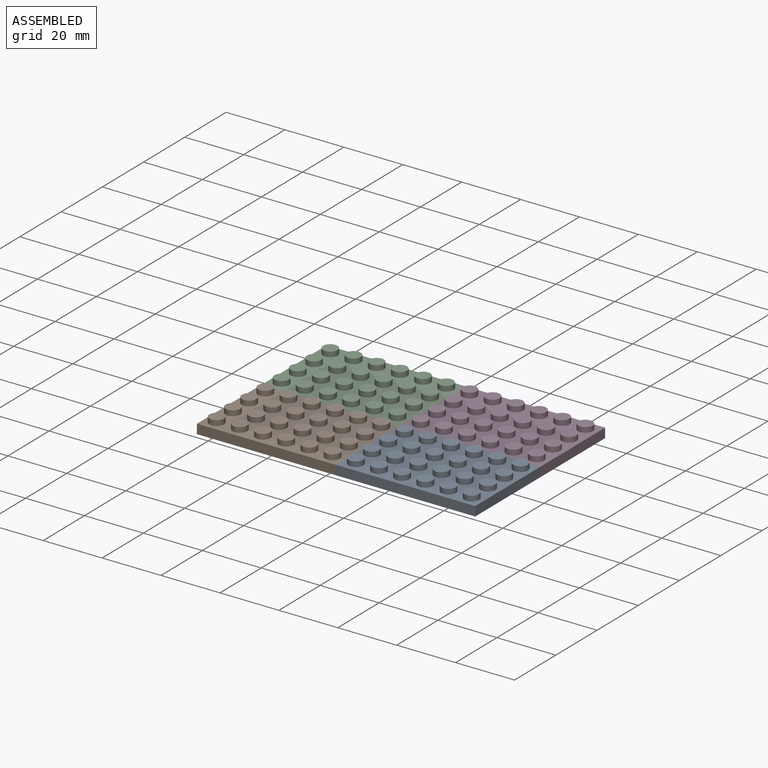
[diagram: assembled view]
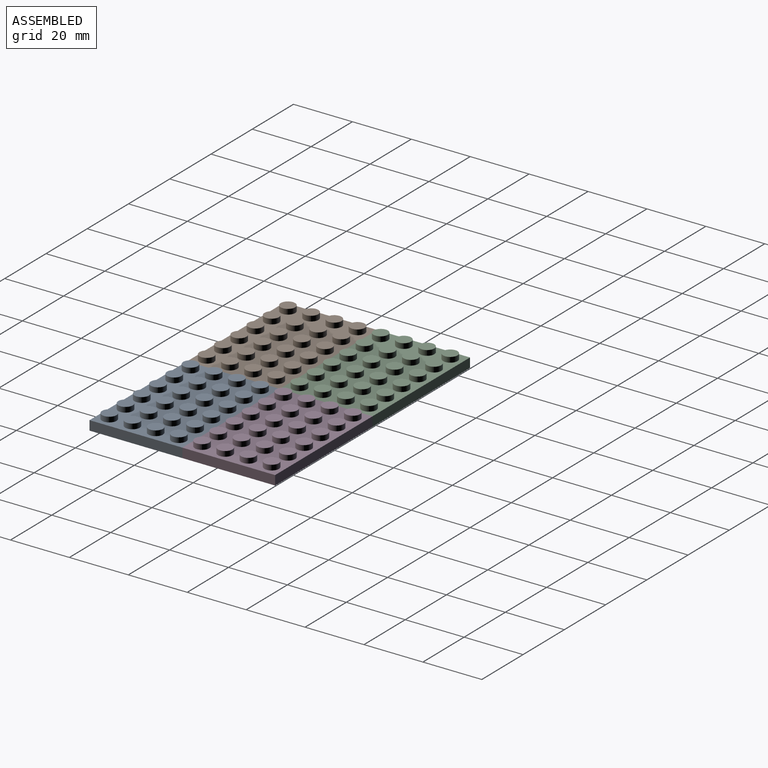
[diagram: assembled view, second angle]
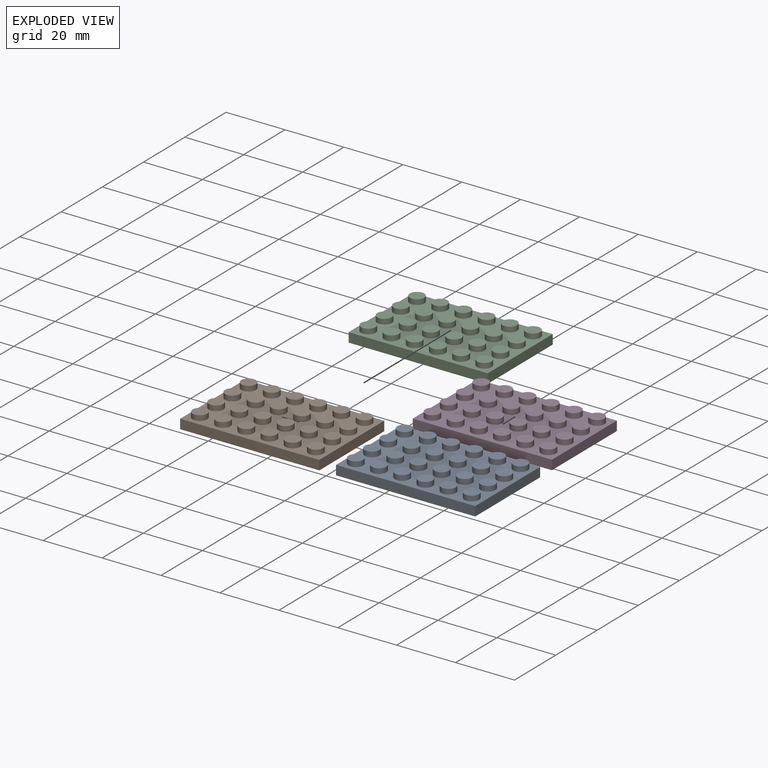
[diagram: exploded view]
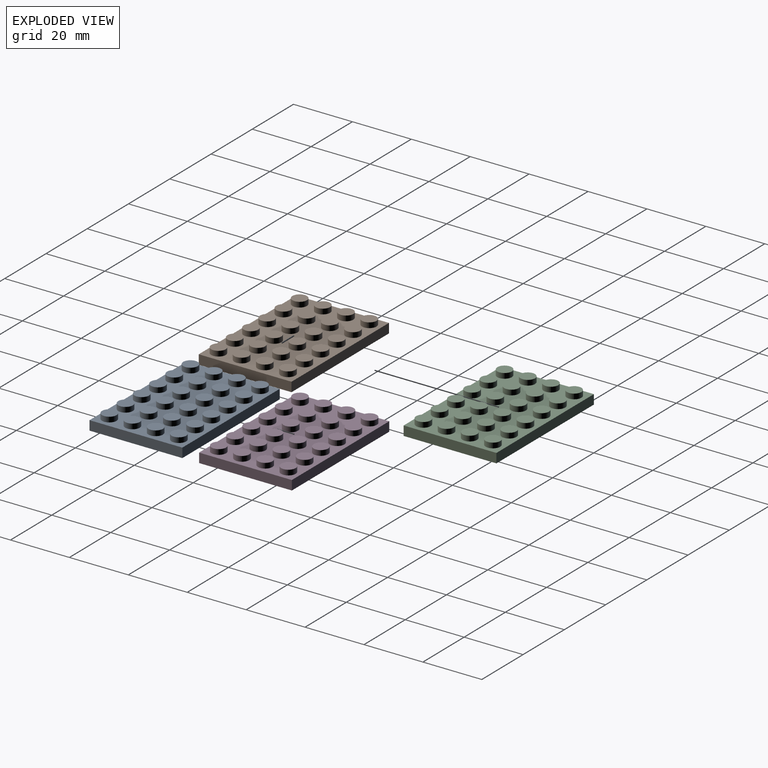
[diagram: exploded view, second angle]
ASSEMBLY  parts=4 mates=3
PART A: 54 faces, bbox 47.2x31.5x5 mm
  f0: plane 47.24x3.21mm, normal (0,-1,0), area 151.6mm2, adj f1,f3,f4,f5
  f1: plane 31.5x3.21mm, normal (1,0,0), area 101mm2, adj f0,f2,f4,f5
  f2: plane 47.24x3.21mm, normal (0,1,0), area 151.6mm2, adj f1,f3,f4,f5
  f3: plane 31.5x3.21mm, normal (-1,0,0), area 101mm2, adj f0,f2,f4,f5
  f4: plane 47.24x31.5mm, normal (0,0,1), area 1030.3mm2, adj f0,f1,f2,f3,f6,f8,f10,f12
  f5: plane 47.24x31.5mm, normal (0,0,-1), area 1488mm2, adj f0,f1,f2,f3
  f6: cylinder r=2.46mm len=4.93mm, axis (0,0,-1), area 27.1mm2, adj f4,f7
  f7: plane 4.93x4.93mm, normal (0,0,1), area 19.1mm2, adj f6
  f8: cylinder r=2.46mm len=4.93mm, axis (0,0,-1), area 27.1mm2, adj f4,f9
  f9: plane 4.93x4.93mm, normal (0,0,1), area 19.1mm2, adj f8
  f10: cylinder r=2.46mm len=4.93mm, axis (0,0,-1), area 27.1mm2, adj f4,f11
  f11: plane 4.93x4.93mm, normal (0,0,1), area 19.1mm2, adj f10
  f12: cylinder r=2.46mm len=4.93mm, axis (0,0,-1), area 27.1mm2, adj f4,f13
  f13: plane 4.93x4.93mm, normal (0,0,1), area 19.1mm2, adj f12
  f14: cylinder r=2.46mm len=4.93mm, axis (0,0,-1), area 27.1mm2, adj f4,f15
  f15: plane 4.93x4.93mm, normal (0,0,1), area 19.1mm2, adj f14
  f16: cylinder r=2.46mm len=4.93mm, axis (0,0,-1), area 27.1mm2, adj f4,f17
  f17: plane 4.93x4.93mm, normal (0,0,1), area 19.1mm2, adj f16
  f18: cylinder r=2.46mm len=4.93mm, axis (0,0,-1), area 27.1mm2, adj f4,f19
  f19: plane 4.93x4.93mm, normal (0,0,1), area 19.1mm2, adj f18
  f20: cylinder r=2.46mm len=4.93mm, axis (0,0,-1), area 27.1mm2, adj f4,f21
  f21: plane 4.93x4.93mm, normal (0,0,1), area 19.1mm2, adj f20
  f22: cylinder r=2.46mm len=4.93mm, axis (0,0,-1), area 27.1mm2, adj f4,f23
  f23: plane 4.93x4.93mm, normal (0,0,1), area 19.1mm2, adj f22
  f24: cylinder r=2.46mm len=4.93mm, axis (0,0,-1), area 27.1mm2, adj f4,f25
  f25: plane 4.93x4.93mm, normal (0,0,1), area 19.1mm2, adj f24
  f26: cylinder r=2.46mm len=4.93mm, axis (0,0,-1), area 27.1mm2, adj f4,f27
  f27: plane 4.93x4.93mm, normal (0,0,1), area 19.1mm2, adj f26
  f28: cylinder r=2.46mm len=4.93mm, axis (0,0,-1), area 27.1mm2, adj f4,f29
  f29: plane 4.93x4.93mm, normal (0,0,1), area 19.1mm2, adj f28
  f30: cylinder r=2.46mm len=4.93mm, axis (0,0,-1), area 27.1mm2, adj f4,f31
  f31: plane 4.93x4.93mm, normal (0,0,1), area 19.1mm2, adj f30
  f32: cylinder r=2.46mm len=4.93mm, axis (0,0,-1), area 27.1mm2, adj f4,f33
  f33: plane 4.93x4.93mm, normal (0,0,1), area 19.1mm2, adj f32
  f34: cylinder r=2.46mm len=4.93mm, axis (0,0,-1), area 27.1mm2, adj f4,f35
  f35: plane 4.93x4.93mm, normal (0,0,1), area 19.1mm2, adj f34
  f36: cylinder r=2.46mm len=4.93mm, axis (0,0,-1), area 27.1mm2, adj f4,f37
  f37: plane 4.93x4.93mm, normal (0,0,1), area 19.1mm2, adj f36
  f38: cylinder r=2.46mm len=4.93mm, axis (0,0,-1), area 27.1mm2, adj f4,f39
  f39: plane 4.93x4.93mm, normal (0,0,1), area 19.1mm2, adj f38
  f40: cylinder r=2.46mm len=4.93mm, axis (0,0,-1), area 27.1mm2, adj f4,f41
  f41: plane 4.93x4.93mm, normal (0,0,1), area 19.1mm2, adj f40
  f42: cylinder r=2.46mm len=4.93mm, axis (0,0,-1), area 27.1mm2, adj f4,f43
  f43: plane 4.93x4.93mm, normal (0,0,1), area 19.1mm2, adj f42
  f44: cylinder r=2.46mm len=4.93mm, axis (0,0,-1), area 27.1mm2, adj f4,f45
  f45: plane 4.93x4.93mm, normal (0,0,1), area 19.1mm2, adj f44
  f46: cylinder r=2.46mm len=4.93mm, axis (0,0,-1), area 27.1mm2, adj f4,f47
  f47: plane 4.93x4.93mm, normal (0,0,1), area 19.1mm2, adj f46
  f48: cylinder r=2.46mm len=4.93mm, axis (0,0,-1), area 27.1mm2, adj f4,f49
  f49: plane 4.93x4.93mm, normal (0,0,1), area 19.1mm2, adj f48
  f50: cylinder r=2.46mm len=4.93mm, axis (0,0,-1), area 27.1mm2, adj f4,f51
  f51: plane 4.93x4.93mm, normal (0,0,1), area 19.1mm2, adj f50
  f52: cylinder r=2.46mm len=4.93mm, axis (0,0,-1), area 27.1mm2, adj f4,f53
  f53: plane 4.93x4.93mm, normal (0,0,1), area 19.1mm2, adj f52
PART B: same geometry as A
PART C: same geometry as A
PART D: same geometry as A
PLACE A t=(-12.18,-5.4,-0.04)mm
PLACE B t=(-59.42,-5.4,-0.04)mm
PLACE C t=(-59.42,26.09,-0.04)mm
PLACE D t=(-12.18,26.09,-0.04)mm
MATE fastened D.f0 <-> A.f2  axis (0,-1,0) through (-35.8,10.34,3.17)mm
MATE fastened B.f1 <-> A.f3  axis (1,0,0) through (-35.8,-21.15,1.56)mm
MATE fastened B.f2 <-> C.f0  axis (0,1,0) through (-83.04,10.34,1.56)mm
